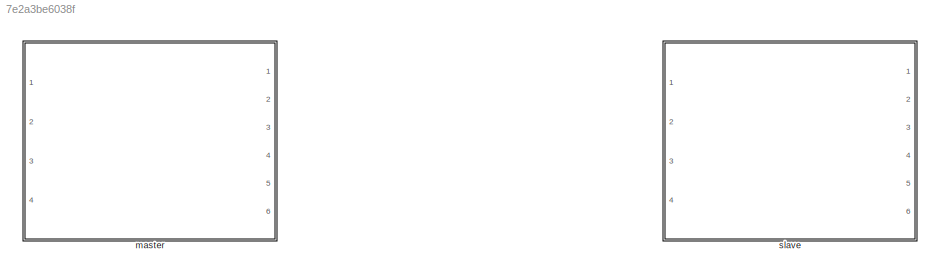
MODEL slx_7e2a3be6038f
KIND model
CONFIG AbsTol = auto
CONFIG EnableMultiTasking = on
CONFIG FixedStep = 1
CONFIG MaxStep = auto
CONFIG MinStep = auto
CONFIG RelTol = 1e-3
CONFIG SampleTimeConstraint = Unconstrained
CONFIG SolverName = FixedStepDiscrete
CONFIG StartTime = 0.0
CONFIG StopTime = 300
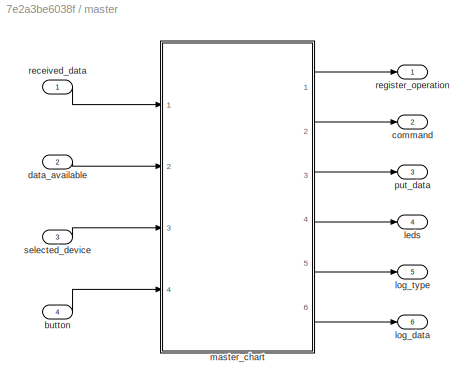
BLOCK [SubSystem] master
  Ports = [4, 6]
  RequestExecContextInheritance = off
BLOCK [Inport] master/button
  Port = 4
BLOCK [Outport] master/command
  Port = 2
BLOCK [Inport] master/data_available
  Port = 2
BLOCK [Outport] master/leds
  Port = 4
BLOCK [Outport] master/log_data
  Port = 6
BLOCK [Outport] master/log_type
  Port = 5
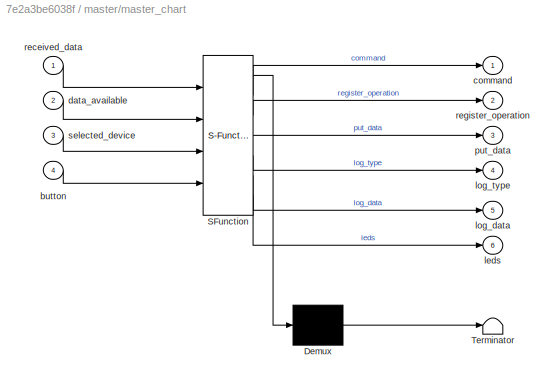
BLOCK [SubSystem] master/master_chart
  ErrorFcn = Stateflow.Translate.translate
  PermitHierarchicalResolution = ExplicitOnly
  PortSchema = {"entries":[{"content":{"sides":[{"content":{"connectorIds":["In1","In2","In3","In4"]},"type":"ConnectorPlacement.EquallySpacedRectSide","uuid":"138602be-6c58-4e8c-ba48-a14eddddc67c"},{"content":{"connectorIds":["Out2","Out1","Out3","Out6","Out4","Out5"],"side":"RIGHT"},"type":"ConnectorPlacement.EquallySpacedRectSide","uuid":"5ecf324f-f194-43dd-983a-d068392304a8"},{"content":{"connectorIds":[],"s...<+295ch>
  Ports = [4, 6]
  RequestExecContextInheritance = off
  SFBlockType = Chart
  TreatAsAtomicUnit = on
BLOCK [Demux] master/master_chart/ Demux 
  Outputs = 1
  Ports = [1, 1]
BLOCK [S-Function] master/master_chart/ SFunction 
  EnableBusSupport = off
  FunctionName = sf_sfun
  PortCounts = [4 7]
  Ports = [4, 7]
  SFcnIsStateOwnerBlock = off
  SFunctionDeploymentMode = off
  Tag = Stateflow S-Function 2
BLOCK [Terminator] master/master_chart/ Terminator 
BLOCK [Inport] master/master_chart/button
  Port = 4
BLOCK [Outport] master/master_chart/command
BLOCK [Inport] master/master_chart/data_available
  Port = 2
BLOCK [Outport] master/master_chart/leds
  Port = 6
BLOCK [Outport] master/master_chart/log_data
  Port = 5
BLOCK [Outport] master/master_chart/log_type
  Port = 4
BLOCK [Outport] master/master_chart/put_data
  Port = 3
BLOCK [Inport] master/master_chart/received_data
BLOCK [Outport] master/master_chart/register_operation
  Port = 2
BLOCK [Inport] master/master_chart/selected_device
  Port = 3
BLOCK [Outport] master/put_data
  OutDataTypeStr = uint8
  Port = 3
BLOCK [Inport] master/received_data
BLOCK [Outport] master/register_operation
BLOCK [Inport] master/selected_device
  Port = 3
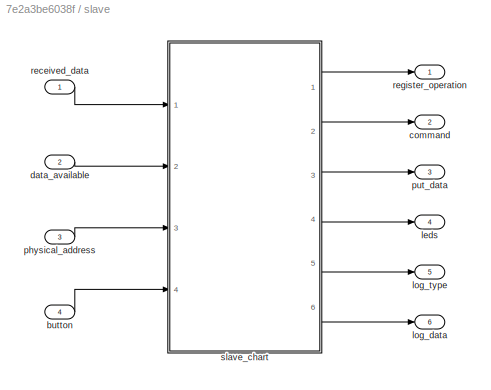
BLOCK [SubSystem] slave
  Ports = [4, 6]
  RequestExecContextInheritance = off
BLOCK [Inport] slave/button
  Port = 4
BLOCK [Outport] slave/command
  Port = 2
BLOCK [Inport] slave/data_available
  Port = 2
BLOCK [Outport] slave/leds
  OutDataTypeStr = uint8
  Port = 4
BLOCK [Outport] slave/log_data
  Port = 6
BLOCK [Outport] slave/log_type
  Port = 5
BLOCK [Inport] slave/physical_address
  Port = 3
BLOCK [Outport] slave/put_data
  OutDataTypeStr = uint8
  Port = 3
BLOCK [Inport] slave/received_data
BLOCK [Outport] slave/register_operation
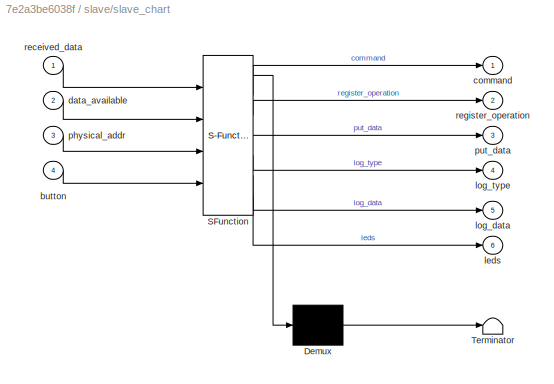
BLOCK [SubSystem] slave/slave_chart
  ErrorFcn = Stateflow.Translate.translate
  PermitHierarchicalResolution = ExplicitOnly
  PortSchema = {"entries":[{"content":{"sides":[{"content":{"connectorIds":["In1","In2","In3","In4"]},"type":"ConnectorPlacement.EquallySpacedRectSide","uuid":"138602be-6c58-4e8c-ba48-a14eddddc67c"},{"content":{"connectorIds":["Out2","Out1","Out3","Out6","Out4","Out5"],"side":"RIGHT"},"type":"ConnectorPlacement.EquallySpacedRectSide","uuid":"5ecf324f-f194-43dd-983a-d068392304a8"},{"content":{"connectorIds":[],"s...<+295ch>
  Ports = [4, 6]
  RequestExecContextInheritance = off
  SFBlockType = Chart
  TreatAsAtomicUnit = on
BLOCK [Demux] slave/slave_chart/ Demux 
  Outputs = 1
  Ports = [1, 1]
BLOCK [S-Function] slave/slave_chart/ SFunction 
  EnableBusSupport = off
  FunctionName = sf_sfun
  PortCounts = [4 7]
  Ports = [4, 7]
  SFcnIsStateOwnerBlock = off
  SFunctionDeploymentMode = off
  Tag = Stateflow S-Function 1
BLOCK [Terminator] slave/slave_chart/ Terminator 
BLOCK [Inport] slave/slave_chart/button
  Port = 4
BLOCK [Outport] slave/slave_chart/command
BLOCK [Inport] slave/slave_chart/data_available
  Port = 2
BLOCK [Outport] slave/slave_chart/leds
  Port = 6
BLOCK [Outport] slave/slave_chart/log_data
  Port = 5
BLOCK [Outport] slave/slave_chart/log_type
  Port = 4
BLOCK [Inport] slave/slave_chart/physical_addr
  Port = 3
BLOCK [Outport] slave/slave_chart/put_data
  Port = 3
BLOCK [Inport] slave/slave_chart/received_data
BLOCK [Outport] slave/slave_chart/register_operation
  Port = 2
LINE master/button:1 -> master/master_chart:4
LINE master/data_available:1 -> master/master_chart:2
LINE master/master_chart:1 -> master/command:1
LINE master/master_chart:2 -> master/register_operation:1
LINE master/master_chart:3 -> master/put_data:1
LINE master/master_chart:4 -> master/log_type:1
LINE master/master_chart:5 -> master/log_data:1
LINE master/master_chart:6 -> master/leds:1
LINE master/received_data:1 -> master/master_chart:1
LINE master/selected_device:1 -> master/master_chart:3
LINE slave/button:1 -> slave/slave_chart:4
LINE slave/data_available:1 -> slave/slave_chart:2
LINE slave/physical_address:1 -> slave/slave_chart:3
LINE slave/received_data:1 -> slave/slave_chart:1
LINE slave/slave_chart:1 -> slave/command:1
LINE slave/slave_chart:2 -> slave/register_operation:1
LINE slave/slave_chart:3 -> slave/put_data:1
LINE slave/slave_chart:4 -> slave/log_type:1
LINE slave/slave_chart:5 -> slave/log_data:1
LINE slave/slave_chart:6 -> slave/leds:1
CHART Test Sequence states=13 transitions=27
  STATE_LABEL 'Run\n\n%% Initialize data outputs\nreceived_data = uint8(0);\ndata_available = false;\nselected_device = uint8(100); %% Device with id = 100\nbutton = uint8(zeros(1, 8));\nstartup = true;\nbutton_pressed = false;'
  STATE_LABEL 'Check_Physical_Address\n\n%% Make data unavailable\ndata_available = false;\n\nassert(register_operation == Operation.OPERATION_WRITE, ...\n    "Check_Physical_Address: Operation asserted");\nassert(command == MasterCommand.MASTER_PUT, ...\n    "Check_Physical_Address: Command asserted");\nassert(put_data == 100, ...\n    "Check_Physical_Address: Data asserted");'
  STATE_LABEL 'Check_Register_Address\n\nassert(register_operation == Operation.OPERATION_WRITE, ...\n    "Check_Register_Address: Operation asserted");\nassert(command == MasterCommand.MASTER_PUT, ...\n    "Check_Register_Address: Command asserted");\nif button_pressed == false\n    assert(put_data == 128, ...\n        "Check_Register_Address: Data asserted");\nelse\n    assert(put_data == 0, ...\n        "Check_Register_...<+30ch>'
  STATE_LABEL 'Waiting_For_Data\n\nassert(register_operation == Operation.OPERATION_READ, ...\n    "Waiting_For_Data: Operation asserted");\nassert(command == MasterCommand.MASTER_READ, ...\n    "Waiting_For_Data: Command asserted");\nassert(put_data == 128, ...\n    "Waiting_For_Data: Data asserted");'
  STATE_LABEL 'Provide_Data\n\nreceived_data = uint8(0xF);\ndata_available = true;'
  STATE_LABEL 'Check_process_data\n\nassert(command == MasterCommand.MASTER_IDLE, ...\n    "Check_process_data: Command asserted");\nassert(isequal(leds,  [1 1 1 1 0 0 0 0]), ...\n    "Check_process_data: LEDs asserted");'
  STATE_LABEL 'Check_Put_Data\n\nassert(register_operation == Operation.OPERATION_WRITE, ...\n    "Check_Put_Data: Operation asserted");\nassert(command == MasterCommand.MASTER_PUT, ...\n    "Check_Put_Data: Command asserted");\n%% LEDs state = 0 1 0 1 1 0 1 0\nassert(put_data == 0x5A , ...\n    "Check_Put_Data: Put data asserted");'
  STATE_LABEL 'Wait_For_Bus_Idle\n\nassert(command == MasterCommand.MASTER_IDLE, ...\n    "Wait_For_Bus_Idle: Command asserted");\nif button_pressed == false\n    assert(isequal(leds,  [1 1 1 1 0 0 0 0]), ...\n        "Wait_For_Bus_Idle: LEDs asserted");\nelse\n    assert(isequal(leds,  [0 1 0 1 1 0 1 0]), ...\n        "Wait_For_Bus_Idle: LEDs asserted");\nend\n'
  STATE_LABEL 'First_Bus_Idle\n\n%% Waiting until bus retrieve timout\nassert(command == MasterCommand.MASTER_IDLE, ...\n    "First_Bus_Idle: Command asserted");\nassert(isequal(leds,  [1 1 1 1 0 0 0 0]), ...\n    "First_Bus_Idle: LEDs asserted");'
  STATE_LABEL 'Bus_timeout_receive_new_state\n\nassert(command == MasterCommand.MASTER_IDLE, ...\n    "Bus_timeout_receive_new_state: Command asserted");\nassert(isequal(leds,  [1 1 1 1 0 0 0 0]), ...\n    "Bus_timeout_receive_new_state: LEDs asserted");\nstartup = false;'
  STATE_LABEL 'Bus_Idle_Button_Pressed\n\nassert(command == MasterCommand.MASTER_IDLE, ...\n    "Bus_Idle_Button_Pressed: Command asserted");\nassert(isequal(leds,  [1 1 1 1 0 0 0 0]), ...\n    "Bus_Idle_Button_Pressed: LEDs asserted");\n\nbutton = uint8([1 0 1 0 1 0 1 0]); %% Button 1, 3, 5, 7 pressed\nbutton_pressed = true;'
  STATE_LABEL 'Update_LEDs\n\nassert(command == MasterCommand.MASTER_IDLE, ...\n    "Update_LEDs: Command asserted");\nassert(isequal(leds,  [0 1 0 1 1 0 1 0]), ...\n    "Update_LEDs: LEDs asserted");'
  STATE_LABEL 'Second_Bus_Idle'
CHART slave/slave_chart states=12 transitions=36
  STATE_LABEL 'startup\nentry:\ncommand = SlaveCommand.SLAVE_IDLE;\nlog_type = Log.LOG_NOTHING;\nleds = 0;\nbutton_old = 0;\n'
  STATE_LABEL 'update_leds\nentry:\ncommand = SlaveCommand.SLAVE_IDLE;\n\nlog_type = Log.LOG_BUTTON_PRESSED;\nlog_data[0] = button_pressed(button_old, button);\n\nleds = leds ^ (button ^ button_old);\nbutton_old = button;\n\nduring:\nexit:\nlog_type = Log.LOG_NOTHING;'
  STATE_LABEL 'result  = button_pressed(old_state, current_state)'
  STATE_LABEL '{result = 0}'
  STATE_LABEL '[result < sizeof(old_state)]'
  STATE_LABEL '{result = result + 1}'
  STATE_LABEL '[old_state[result] == 0 && current_state[result] == 1]'
  STATE_LABEL 'bus_idle\nentry:\nregister_operation = Operation.OPERATION_READ;\ncommand = SlaveCommand.SLAVE_READ;\nlog_type = Log.LOG_NOTHING;\n\nduring:\nbutton_old = button\n\nexit:'
  STATE_LABEL 'read_register_address\nentry:\nregister_operation = Operation.OPERATION_READ;\ncommand = SlaveCommand.SLAVE_READ;\nduring:\nexit:\n'
  STATE_LABEL 'wait_bus_idle\nentry:\nregister_operation = Operation.OPERATION_READ;\ncommand = SlaveCommand.SLAVE_IGNORE;\nbutton_old = button\nidle_clocks = 0;\n\nduring:\nidle_clocks = idle_clocks + 1;\n\nexit:'
  STATE_LABEL 'results  = extract_bits(data)'
  STATE_LABEL '{i = 0;}'
  STATE_LABEL '[i < sizeof(results)]'
  STATE_LABEL '{i = i + 1;}'
  STATE_LABEL '{results[i] = data & 0x1;\ndata = data >> 1;}'
  STATE_LABEL 'wait_for_master\nentry:\ncommand = SlaveCommand.SLAVE_IDLE;\nduring:\nexit:'
  STATE_LABEL 'read_data\nentry:\nregister_operation = Operation.OPERATION_READ;\ncommand = SlaveCommand.SLAVE_READ;\nduring:\nexit:'
  STATE_LABEL 'put_data\nentry:\nregister_operation = Operation.OPERATION_WRITE;\ncommand = SlaveCommand.SLAVE_PUT;\nput_data = combine_bits(leds)\n\nlog_type = Log.LOG_REPLY;\nlog_data[0] = put_data;\n\nduring:\nexit:'
  STATE_LABEL 'output  = combine_bits(bits)'
  STATE_LABEL '{i = 0; output = 0}'
  STATE_LABEL '[i < sizeof(bits)]'
  STATE_LABEL '{i = i + 1;}'
  STATE_LABEL '{output |= bits[i] << i;}'
  STATE_LABEL 'process_data\nentry:\ncommand = SlaveCommand.SLAVE_IDLE;\n\nlog_type = Log.LOG_RECEIVE;\nlog_data[0] = 0;\nlog_data[1] = received_data;\n\nleds =extract_bits(received_data);\n\nduring:\nexit:'
CHART master/master_chart states=13 transitions=32
  STATE_LABEL 'bus_idle\nentry:\ncommand = MasterCommand.MASTER_IDLE;\nlog_type = Log.LOG_NOTHING;\nbutton_old = button;\nlast_selected_device = selected_device;\n\nduring:\nexit:'
  STATE_LABEL 'result  = button_pressed(old_state, current_state)'
  STATE_LABEL '{result = 0}'
  STATE_LABEL '[result < sizeof(old_state)]'
  STATE_LABEL '{result = result + 1}'
  STATE_LABEL '[old_state[result] == 0 && current_state[result] == 1]'
  STATE_LABEL 'update_leds\nentry:\ncommand = MasterCommand.MASTER_IDLE;\n\nlog_type = Log.LOG_BUTTON_PRESSED;\nlog_data[0] = button_pressed(button_old, button);\n\nleds = leds ^ (button ^ button_old);\nbutton_old = button;\n\nphy_addr = uint8(selected_device);\nreg_addr = 0;\n\nduring:\nexit:\nlog_type = Log.LOG_NOTHING;'
  STATE_LABEL 'retrieve_leds\nentry:\ncommand = MasterCommand.MASTER_IDLE;\n\nphy_addr = uint8(selected_device);\nreg_addr = (1 << 7) | 0;\n\nlog_type = Log.LOG_RETRIEVE_STATE;\nlog_data[0] = phy_addr;\n\nduring:\nexit:\nlog_type = Log.LOG_NOTHING;'
  STATE_LABEL 'results  = extract_bits(data)'
  STATE_LABEL '{i = 0;}'
  STATE_LABEL '[i < sizeof(results)]'
  STATE_LABEL '{i = i + 1;}'
  STATE_LABEL '{results[i] = data & 0x1;\ndata = data >> 1;}'
  STATE_LABEL 'send_physical_address\nentry:\nregister_operation = Operation.OPERATION_WRITE;\ncommand = MasterCommand.MASTER_PUT;\nput_data = uint8(phy_addr);\nduring:\nexit:\n'
  STATE_LABEL 'startup\nentry:\ncommand = MasterCommand.MASTER_IDLE;\nlog_type = Log.LOG_NOTHING;\nphy_addr = uint8(selected_device);\nreg_addr = (1 << 7) | 0;\nleds = 0;\nbutton_old = 0;\n'
  STATE_LABEL 'output  = combine_bits(bits)'
  STATE_LABEL '{i = 0; output = 0}'
  STATE_LABEL '[i < sizeof(bits)]'
  STATE_LABEL '{i = i + 1;}'
  STATE_LABEL '{output |= bits[i] << i;}'
  STATE_LABEL 'send_register_address\nentry:\nregister_operation = Operation.OPERATION_WRITE;\ncommand = MasterCommand.MASTER_PUT;\nput_data = reg_addr;\nduring:\nexit:'
  STATE_LABEL 'read_data\nentry:\nregister_operation = Operation.OPERATION_READ;\ncommand = MasterCommand.MASTER_READ;\nduring:\nexit:\n\n'
  STATE_LABEL 'put_data\nentry:\nregister_operation = Operation.OPERATION_WRITE;\ncommand = MasterCommand.MASTER_PUT;\nput_data = combine_bits(leds);\n\nlog_type = Log.LOG_SEND;\nlog_data[0] = phy_addr;\nlog_data[1] = reg_addr;\nlog_data[2] = put_data;\n\nduring:\nexit:'
  STATE_LABEL 'process_data\nentry:\ncommand = MasterCommand.MASTER_IDLE;\n\nlog_type = Log.LOG_RECEIVE;\nlog_data[0] = phy_addr;\nlog_data[1] = reg_addr;\nlog_data[2] = received_data;\n\nleds = extract_bits(received_data)\n\nduring:\nexit: \n'
  STATE_LABEL 'wait_bus_idle\nentry:\ncommand = MasterCommand.MASTER_IDLE;\nlog_type = Log.LOG_NOTHING;\nidle_clocks = 0;\nduring:\nidle_clocks = idle_clocks + 1;\nexit:\nretrieve_timeout = 50;'
CHART  states=0 transitions=0
CHART  states=0 transitions=0
